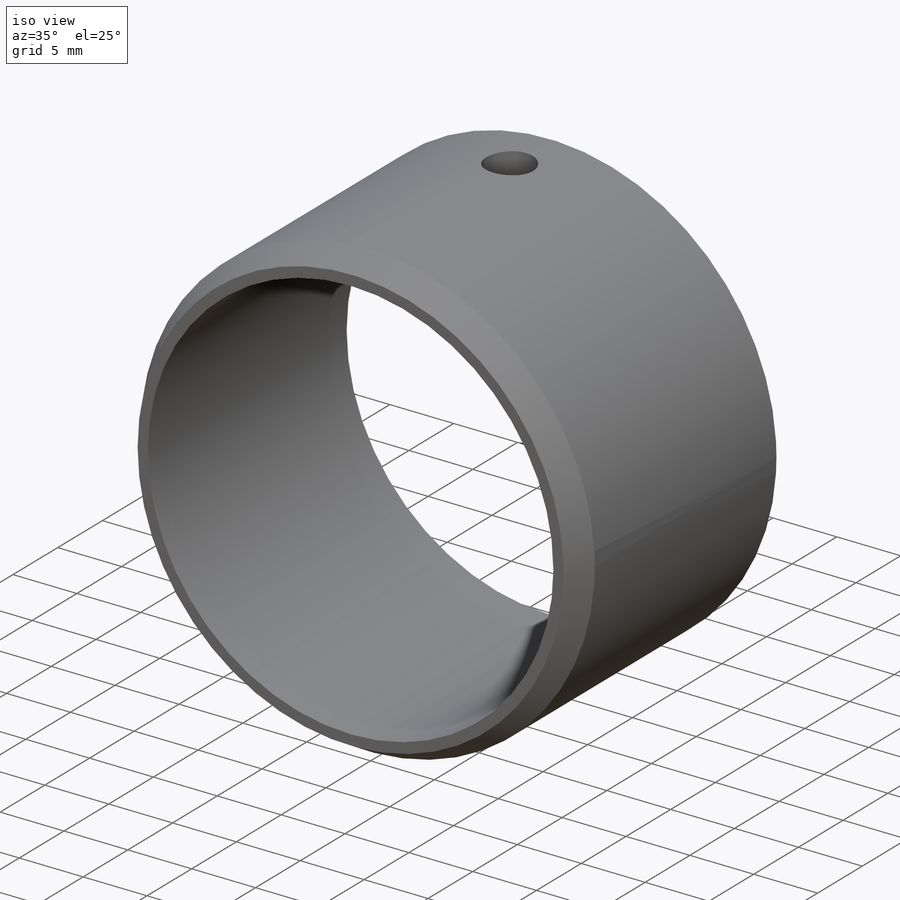
[diagram: iso view]
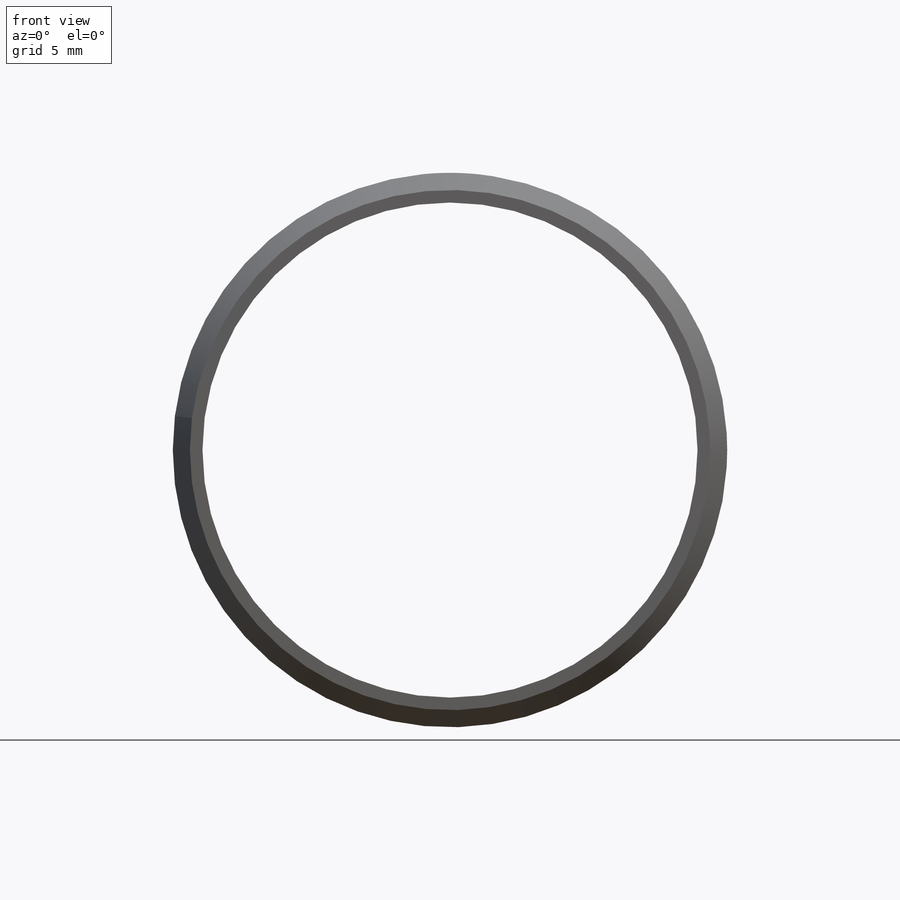
[diagram: front view]
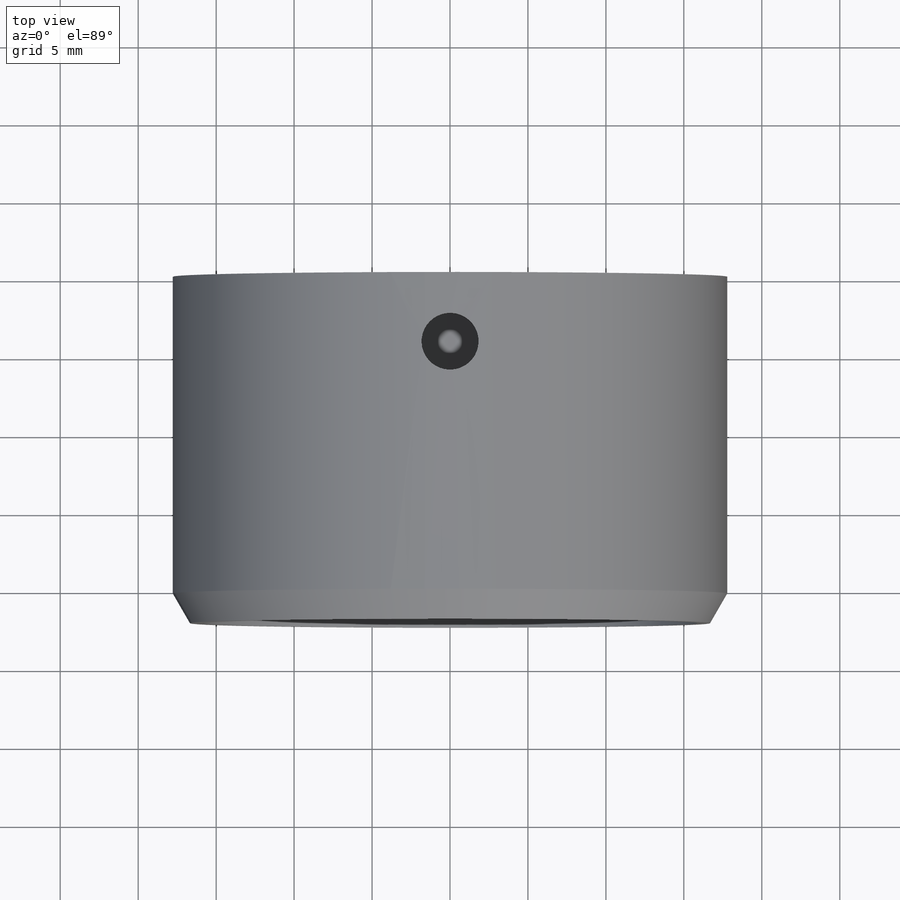
[diagram: top view]
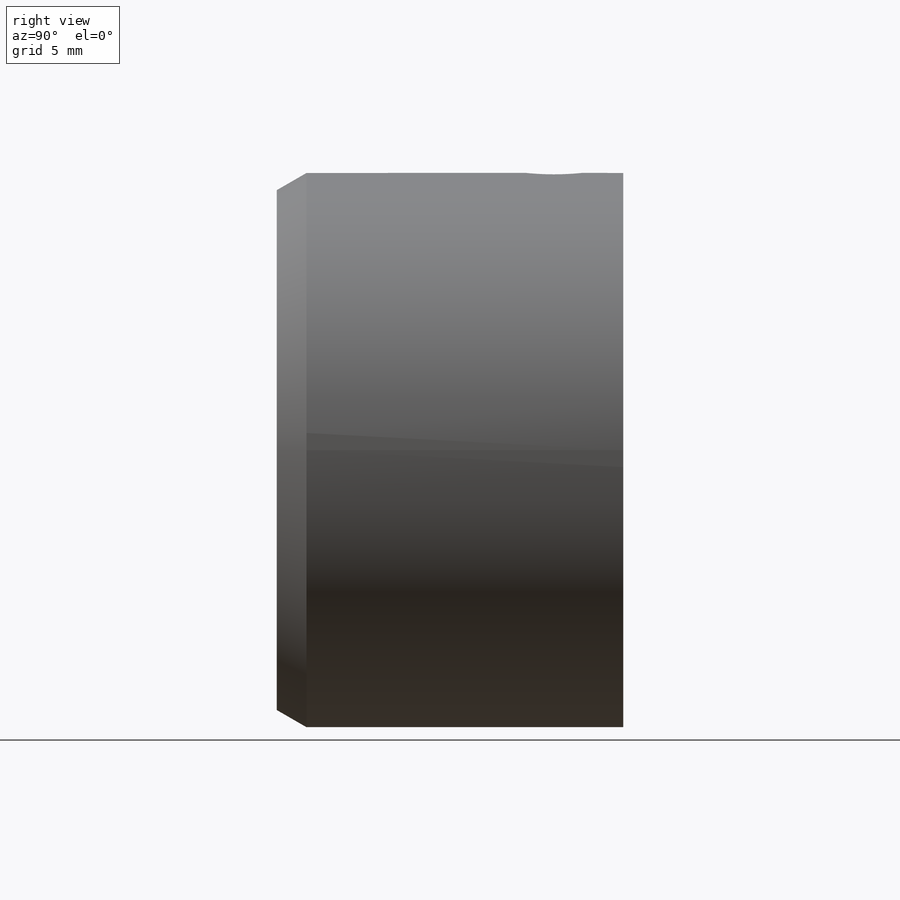
[diagram: right view]
SOLIDWORKS PART (.sldprt)
format: sldprt  version: not decoded by parser v0  size: 211,456 bytes
history: native  units: mm
features: sketch x7, extrude x3, chamfer x2, cut_extrude x2, material x1, hole x1 (+13 scaffold rows collapsed)
feature tree (29):
  scaffold x13  (default folders/planes/origin — collapsed)
  material  "Material <not specified>"
  sketch  "Sketch1"  dims[D1=31.75mm D2=1.905mm]
  extrude  "Boss-Extrude1"  Depth=22.225mm
  chamfer  "Chamfer4"  Distance=1.905mm Angle=30deg
  sketch  "Sketch2"  dims[D1=29.21mm]
  cut_extrude  "Cut-Extrude1"  Depth=1.27mm
  chamfer  "Chamfer2"  Distance=1.27mm Angle=30deg
  hole  "#27 (0.144) Diameter Hole1"  Diameter=3.6576mm Depth=25.4mm
  sketch  "3DSketch2"  dims[D1=16.51mm]
  sketch  "Sketch4"  dims[hole-wizard template sketch: 47 standard entries collapsed; hole parameters kept: c15.Hole Depth=25.4mm c15.D3=~14.816244mm c15.Drill Angle=118.0deg]
  sketch  "Sketch5"  dims[D1=30.48mm]
  extrude  "Boss-Extrude2"  Depth=1.905mm
  sketch  "Sketch6"  dims[D1=21.59mm]
  cut_extrude  "Cut-Extrude2"  [1 undecoded]
  sketch  "Sketch7"  dims[c1.D1=~13.258442mm c1.D2=24.13mm c2.D1=1.27mm]
  extrude  "Boss-Extrude3"  Depth=10.16mm
decode coverage: 14 of 15 modeling features carry decoded parameters
note: ~ marks probable driven/reference dimensions
note: 1 parameter value undecoded
note: suppression state not decoded; provenance and decode notes live in map.json
